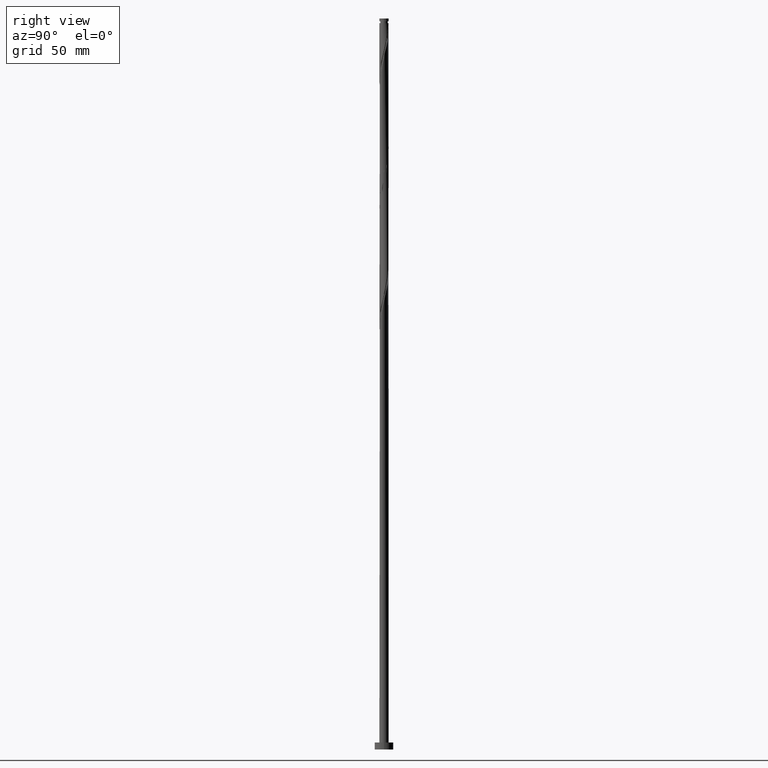
[diagram: clean part render]
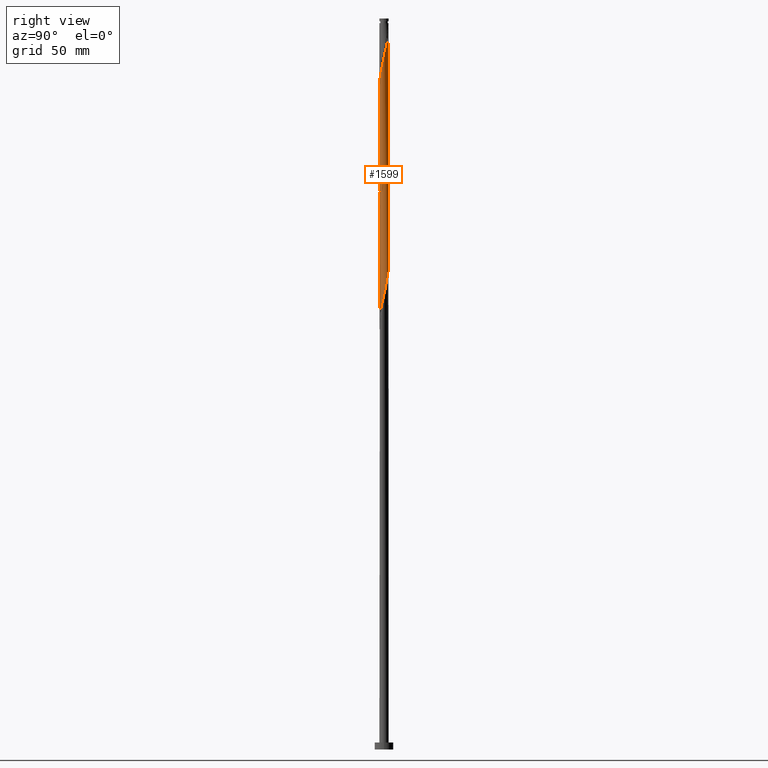
[diagram: same view with one face highlighted and labeled with its STEP entity id]
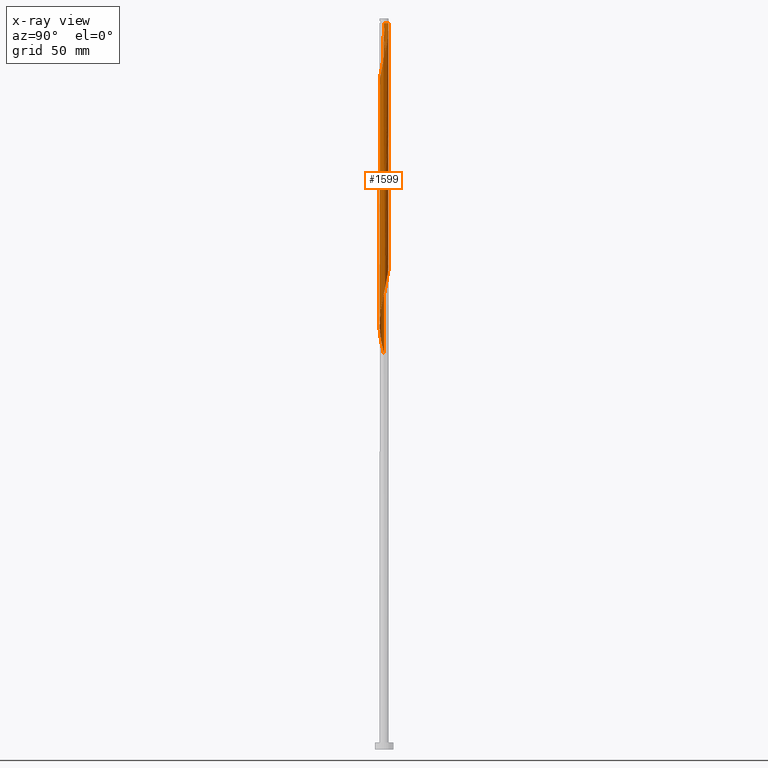
[diagram: x-ray of the same camera — body ghosted, the highlighted face saturated]
A machine part, right view. The second image highlights one B-rep face of the part: STEP entity #1599.
The next image is the same camera in x-ray: the body ghosted, the highlighted face saturated — about 0% of this face is hidden behind the body in this view.
In plain terms, the highlighted cylindrical surface (bore or boss wall) has radius 2 mm, axis along (-0, -0, -1).
Its self-contained STEP definition (entity closure, byte-faithful):
#18 = CARTESIAN_POINT ( 'NONE',  ( -1.999999999999999556, 2.089608293013599291E-15, 170.3156479799729652 ) ) ;
#20 = CARTESIAN_POINT ( 'NONE',  ( -0.9108750104470638709, -1.780535513642755863, 281.1411309020668341 ) ) ;
#34 = CARTESIAN_POINT ( 'NONE',  ( 0.6188339370468680656, -1.915156736119010494, 287.7036309020668909 ) ) ;
#39 = CARTESIAN_POINT ( 'NONE',  ( 1.822296494364466612, -0.8241574404365787920, 193.0161309020669478 ) ) ;
#43 = CARTESIAN_POINT ( 'NONE',  ( 1.284243897631924813, 1.533205012839174319, 305.5161309020669478 ) ) ;
#49 = CARTESIAN_POINT ( 'NONE',  ( 1.533205012839172765, 1.284243897631921705, 254.8911309020669478 ) ) ;
#53 = CARTESIAN_POINT ( 'NONE',  ( 0.8241574404365790141, -1.822296494364470387, 288.6411309020669478 ) ) ;
#54 = CARTESIAN_POINT ( 'NONE',  ( 1.677904548334138379, 1.111493181365744709, 201.4536309020669194 ) ) ;
#57 = CARTESIAN_POINT ( 'NONE',  ( 1.999420921388279426, 0.04812462067217344180, 249.2661309020669478 ) ) ;
#68 = CARTESIAN_POINT ( 'NONE',  ( -1.456994613898098923, 1.388505477344206263, 268.9536309020668909 ) ) ;
#75 = CARTESIAN_POINT ( 'NONE',  ( -0.2734052539827800943, 1.993998578895568086, 210.8286309020669478 ) ) ;
#78 = CARTESIAN_POINT ( 'NONE',  ( 1.780535513642753198, 0.9108750104470616504, 253.0161309020669194 ) ) ;
#95 = ORIENTED_EDGE ( 'NONE', *, *, #1073, .F. ) ;
#131 = CARTESIAN_POINT ( 'NONE',  ( -1.915156736119010494, -0.6188339370468681766, 274.5786309020668909 ) ) ;
#152 = CARTESIAN_POINT ( 'NONE',  ( 0.2734052539827798167, -1.993998578895568086, 184.5786309020669478 ) ) ;
#156 = CARTESIAN_POINT ( 'NONE',  ( -0.4918310467555808141, -1.938582528923471049, 283.0161309020668909 ) ) ;
#161 = CARTESIAN_POINT ( 'NONE',  ( -0.04812462067217446876, -1.999420921388282979, 284.8911309020668909 ) ) ;
#171 = CARTESIAN_POINT ( 'NONE',  ( 0.8241574404365787920, 1.822296494364466390, 206.1411309020669194 ) ) ;
#176 = FACE_OUTER_BOUND ( 'NONE', #953, .T. ) ;
#180 = CARTESIAN_POINT ( 'NONE',  ( -1.677904548334138157, -1.111493181365745153, 227.7036309020668625 ) ) ;
#184 = CARTESIAN_POINT ( 'NONE',  ( -0.7102568395283782587, 1.883166478951367573, 265.2036309020668909 ) ) ;
#188 = CARTESIAN_POINT ( 'NONE',  ( 1.822296494364466612, -0.8241574404365787920, 245.5161309020669478 ) ) ;
#192 = CARTESIAN_POINT ( 'NONE',  ( -0.9108750104470619835, 1.780535513642753198, 266.1411309020669478 ) ) ;
#195 = CARTESIAN_POINT ( 'NONE',  ( 1.456994613898102253, 1.388505477344208483, 304.5786309020669478 ) ) ;
#198 = CARTESIAN_POINT ( 'NONE',  ( 1.999999999999999112, -2.317226339216866477E-15, 249.0656479799729652 ) ) ;
#206 = CARTESIAN_POINT ( 'NONE',  ( 1.780535513642755863, -0.9108750104470642039, 294.2661309020669478 ) ) ;
#207 = CARTESIAN_POINT ( 'NONE',  ( -0.4918310467555793153, 1.938582528923467940, 211.7661309020669478 ) ) ;
#214 = DIRECTION ( 'NONE',  ( -0.000000000000000000, -0.000000000000000000, -1.000000000000000000 ) ) ;
#270 = EDGE_CURVE ( 'NONE', #1166, #359, #813, .T. ) ;
#275 = CARTESIAN_POINT ( 'NONE',  ( -1.593215433254016045, -1.208993210585249445, 277.3911309020669478 ) ) ;
#287 = CARTESIAN_POINT ( 'NONE',  ( -1.677904548334138157, -1.111493181365745153, 175.2036309020669194 ) ) ;
#296 = CARTESIAN_POINT ( 'NONE',  ( -1.029480943826289074, -1.729436252609926283, 178.9536309020668625 ) ) ;
#303 = CARTESIAN_POINT ( 'NONE',  ( 0.1771560126384324751, 2.004843263880990989, 208.9536309020668625 ) ) ;
#307 = CARTESIAN_POINT ( 'NONE',  ( -1.388505477344206707, -1.456994613898098923, 177.0786309020669194 ) ) ;
#311 = CARTESIAN_POINT ( 'NONE',  ( 0.9108750104470642039, 1.780535513642755863, 307.3911309020668909 ) ) ;
#312 = CARTESIAN_POINT ( 'NONE',  ( 1.883166478951367573, 0.7102568395283779257, 199.5786309020668909 ) ) ;
#315 = CARTESIAN_POINT ( 'NONE',  ( -1.593215433254013380, 1.208993210585247891, 269.8911309020670046 ) ) ;
#321 = CARTESIAN_POINT ( 'NONE',  ( -1.456994613898098923, 1.388505477344206263, 216.4536309020668909 ) ) ;
#328 = CARTESIAN_POINT ( 'NONE',  ( -0.3979949748426959144, 1.960000000000543974, 313.0161309020667204 ) ) ;
#329 = CARTESIAN_POINT ( 'NONE',  ( 0.9108750104470616504, -1.780535513642753198, 239.8911309020669478 ) ) ;
#332 = CARTESIAN_POINT ( 'NONE',  ( -0.2734052539827800943, 1.993998578895568086, 263.3286309020668909 ) ) ;
#337 = CARTESIAN_POINT ( 'NONE',  ( -0.1771560126384291445, 2.004843263880994098, 312.0786309020668909 ) ) ;
#338 = CARTESIAN_POINT ( 'NONE',  ( 1.959999999999998632, -0.3979949748426503953, 247.3911309020669194 ) ) ;
#341 = CARTESIAN_POINT ( 'NONE',  ( 2.000000000000000000, 2.449293598294706414E-16, 315.0000000000000000 ) ) ;
#359 = VERTEX_POINT ( 'NONE', #463 ) ;
#424 = EDGE_CURVE ( 'NONE', #1124, #1774, #1176, .T. ) ;
#427 = CARTESIAN_POINT ( 'NONE',  ( -1.999999999999999556, -1.003758269322604037E-15, 275.3156479799729937 ) ) ;
#433 = VECTOR ( 'NONE', #627, 1000.000000000000000 ) ;
#443 = CYLINDRICAL_SURFACE ( 'NONE', #1382, 2.000000000000000000 ) ;
#446 = CARTESIAN_POINT ( 'NONE',  ( 0.4918310467555809251, 1.938582528923471493, 309.2661309020669478 ) ) ;
#448 = CARTESIAN_POINT ( 'NONE',  ( -0.9108750104470619835, 1.780535513642753198, 213.6411309020669762 ) ) ;
#451 = CARTESIAN_POINT ( 'NONE',  ( 0.8241574404365787920, 1.822296494364466390, 258.6411309020668909 ) ) ;
#454 = CARTESIAN_POINT ( 'NONE',  ( 1.533205012839174319, -1.284243897631924813, 292.3911309020668341 ) ) ;
#456 = CARTESIAN_POINT ( 'NONE',  ( 1.938582528923467940, 0.4918310467555788712, 198.6411309020669478 ) ) ;
#459 = CARTESIAN_POINT ( 'NONE',  ( 1.388505477344206929, 1.456994613898098923, 255.8286309020668625 ) ) ;
#463 = CARTESIAN_POINT ( 'NONE',  ( -0.3979949748426959144, 1.960000000000544196, 313.0161309020667773 ) ) ;
#469 = CARTESIAN_POINT ( 'NONE',  ( -1.729436252609926283, 1.029480943826289074, 218.3286309020669194 ) ) ;
#475 = CARTESIAN_POINT ( 'NONE',  ( -2.000000000000000000, 0.000000000000000000, 315.0000000000000000 ) ) ;
#476 = CARTESIAN_POINT ( 'NONE',  ( 0.7102568395283807012, 1.883166478951371126, 308.3286309020668341 ) ) ;
#477 = VERTEX_POINT ( 'NONE', #1748 ) ;
#478 = CARTESIAN_POINT ( 'NONE',  ( 1.999999999999998224, -0.2010075630518474987, 248.2273769010093645 ) ) ;
#481 = CARTESIAN_POINT ( 'NONE',  ( -1.729436252609926283, 1.029480943826289074, 270.8286309020669478 ) ) ;
#490 = LINE ( 'NONE', #341, #1364 ) ;
#500 = ORIENTED_EDGE ( 'NONE', *, *, #1587, .F. ) ;
#557 = CARTESIAN_POINT ( 'NONE',  ( 2.000000000000000000, 2.449293598294706414E-16, 313.0161309020669478 ) ) ;
#560 = CARTESIAN_POINT ( 'NONE',  ( -1.960000000000002629, -0.3979949748426502842, 273.6411309020668909 ) ) ;
#562 =( BOUNDED_CURVE ( )  B_SPLINE_CURVE ( 2, ( #623, #1047, #1030, #1584, #1606, #481, #315, #68, #1337, #1182, #192, #184, #1575, #332, #1306, #870, #746, #896, #451, #1744, #1329, #459, #49, #1458, #78, #765, #887, #1203, #57, #1190, #638 ),
 .UNSPECIFIED., .F., .T. ) 
 B_SPLINE_CURVE_WITH_KNOTS ( ( 3, 2, 2, 2, 2, 2, 2, 2, 2, 2, 2, 2, 2, 2, 2, 3 ),
 ( 0.4295303401299219725, 0.4375000000000000000, 0.4464285714285714524, 0.4553571428571428492, 0.4642857142857143016, 0.4732142857142856984, 0.4821428571428571508, 0.4910714285714285476, 0.5000000000000000000, 0.5089285714285713969, 0.5178571428571429047, 0.5267857142857143016, 0.5357142857142856984, 0.5446428571428570953, 0.5535714285714286031, 0.5545303401299221946 ),
 .UNSPECIFIED. ) 
 CURVE ( )  GEOMETRIC_REPRESENTATION_ITEM ( )  RATIONAL_B_SPLINE_CURVE ( ( 0.9079949616362307241, 0.9039886423360936618, 0.9090909090909605750, 0.9033747362666354475, 0.9090909090909605750, 0.9033747362666354475, 0.9090909090909605750, 0.9033747362666354475, 0.9090909090909605750, 0.9033747362666354475, 0.9090909090909605750, 0.9033747362666354475, 0.9090909090909605750, 0.9033747362666354475, 0.9090909090909605750, 0.9033747362666354475, 0.9090909090909605750, 0.9033747362666354475, 0.9090909090909605750, 0.9033747362666354475, 0.9090909090909605750, 0.9033747362666354475, 0.9090909090909605750, 0.9033747362666354475, 0.9090909090909605750, 0.9033747362666354475, 0.9090909090909605750, 0.9033747362666354475, 0.9090909090909605750, 0.9084770030215022496, 0.9079949616362305020 ) ) 
 REPRESENTATION_ITEM ( '' )  );
#570 = CARTESIAN_POINT ( 'NONE',  ( 0.1771560126384322253, -2.004843263880994542, 285.8286309020669478 ) ) ;
#579 =( BOUNDED_CURVE ( )  B_SPLINE_CURVE ( 2, ( #1801, #1525, #560, #131, #1657, #975, #275, #957, #829, #1267, #20, #1533, #156, #707, #161, #570, #1280, #34, #53, #628, #749, #599, #454, #1590, #206, #1439, #730, #1429, #740, #1014, #619, #1285, #1177, #1294, #1301, #195, #43, #1579, #311, #476, #446, #1738, #1035, #337, #328 ),
 .UNSPECIFIED., .F., .T. ) 
 B_SPLINE_CURVE_WITH_KNOTS ( ( 3, 2, 2, 2, 2, 2, 2, 2, 2, 2, 2, 2, 2, 2, 2, 2, 2, 2, 2, 2, 2, 2, 3 ),
 ( 0.5545303401299218615, 0.5625000000000000000, 0.5714285714285713969, 0.5803571428571427937, 0.5892857142857143016, 0.5982142857142856984, 0.6071428571428572063, 0.6160714285714286031, 0.6250000000000000000, 0.6339285714285713969, 0.6428571428571427937, 0.6517857142857141906, 0.6607142857142855874, 0.6696428571428570953, 0.6785714285714284921, 0.6874999999999998890, 0.6964285714285712858, 0.7053571428571426827, 0.7142857142857141906, 0.7232142857142855874, 0.7321428571428570953, 0.7410714285714284921, 0.7499999999999998890 ),
 .UNSPECIFIED. ) 
 CURVE ( )  GEOMETRIC_REPRESENTATION_ITEM ( )  RATIONAL_B_SPLINE_CURVE ( ( 0.9079949616362383846, 0.9039886423361009893, 0.9090909090909681245, 0.9033747362666427749, 0.9090909090909681245, 0.9033747362666427749, 0.9090909090909681245, 0.9033747362666427749, 0.9090909090909681245, 0.9033747362666427749, 0.9090909090909681245, 0.9033747362666427749, 0.9090909090909681245, 0.9033747362666427749, 0.9090909090909681245, 0.9033747362666427749, 0.9090909090909681245, 0.9033747362666427749, 0.9090909090909681245, 0.9033747362666427749, 0.9090909090909681245, 0.9033747362666427749, 0.9090909090909681245, 0.9033747362666427749, 0.9090909090909681245, 0.9033747362666427749, 0.9090909090909681245, 0.9033747362666427749, 0.9090909090909681245, 0.9033747362666427749, 0.9090909090909681245, 0.9033747362666427749, 0.9090909090909681245, 0.9033747362666427749, 0.9090909090909681245, 0.9033747362666427749, 0.9090909090909681245, 0.9033747362666427749, 0.9090909090909681245, 0.9033747362666427749, 0.9090909090909681245, 0.9033747362666427749, 0.9090909090909681245, 0.9033747362666428860, 0.9090909090909680135 ) ) 
 REPRESENTATION_ITEM ( '' )  );
#581 = CARTESIAN_POINT ( 'NONE',  ( -2.000000000000000000, 0.000000000000000000, 315.0000000000000000 ) ) ;
#585 = CARTESIAN_POINT ( 'NONE',  ( 1.593215433254013158, -1.208993210585247891, 191.1411309020669194 ) ) ;
#592 = CARTESIAN_POINT ( 'NONE',  ( -1.593215433254013380, 1.208993210585247891, 217.3911309020669478 ) ) ;
#595 = CARTESIAN_POINT ( 'NONE',  ( 0.04812462067217355283, -1.999420921388279426, 183.6411309020669194 ) ) ;
#598 = DIRECTION ( 'NONE',  ( -1.000000000000000000, 0.000000000000000000, 0.000000000000000000 ) ) ;
#599 = CARTESIAN_POINT ( 'NONE',  ( 1.388505477344208705, -1.456994613898102253, 291.4536309020670615 ) ) ;
#601 = CARTESIAN_POINT ( 'NONE',  ( -1.993998578895568086, -0.2734052539827799833, 223.9536309020669194 ) ) ;
#604 = CARTESIAN_POINT ( 'NONE',  ( -1.999999999999999556, 2.089608293013599291E-15, 170.3156479799729652 ) ) ;
#610 = EDGE_CURVE ( 'NONE', #1166, #761, #1692, .T. ) ;
#611 = CARTESIAN_POINT ( 'NONE',  ( -0.04812462067217377487, 1.999420921388279426, 209.8911309020669194 ) ) ;
#619 = CARTESIAN_POINT ( 'NONE',  ( 1.960000000000002629, 0.3979949748426499512, 299.8911309020668909 ) ) ;
#620 = CARTESIAN_POINT ( 'NONE',  ( -1.284243897631922149, 1.533205012839172543, 215.5161309020669194 ) ) ;
#623 = CARTESIAN_POINT ( 'NONE',  ( -1.999999999999999556, -1.003758269322604037E-15, 275.3156479799729937 ) ) ;
#627 = DIRECTION ( 'NONE',  ( -0.000000000000000000, -0.000000000000000000, -1.000000000000000000 ) ) ;
#628 = CARTESIAN_POINT ( 'NONE',  ( 1.029480943826289741, -1.729436252609930280, 289.5786309020669478 ) ) ;
#629 = CARTESIAN_POINT ( 'NONE',  ( 1.284243897631921705, -1.533205012839172765, 241.7661309020669762 ) ) ;
#638 = CARTESIAN_POINT ( 'NONE',  ( 1.999999999999999112, -2.317226339216866477E-15, 249.0656479799729652 ) ) ;
#704 = DIRECTION ( 'NONE',  ( -1.000000000000000000, 0.000000000000000000, 0.000000000000000000 ) ) ;
#707 = CARTESIAN_POINT ( 'NONE',  ( -0.2734052539827812045, -1.993998578895571860, 283.9536309020668909 ) ) ;
#712 = CARTESIAN_POINT ( 'NONE',  ( 1.915156736119006498, -0.6188339370468676215, 193.9536309020669478 ) ) ;
#719 = CARTESIAN_POINT ( 'NONE',  ( 0.4918310467555790932, -1.938582528923467940, 185.5161309020669478 ) ) ;
#722 = CARTESIAN_POINT ( 'NONE',  ( 0.04812462067217355283, -1.999420921388279426, 236.1411309020669478 ) ) ;
#727 = CARTESIAN_POINT ( 'NONE',  ( -1.999999999999999556, -0.02406579433277882679, 170.4160106681980835 ) ) ;
#730 = CARTESIAN_POINT ( 'NONE',  ( 1.938582528923471493, -0.4918310467555809251, 296.1411309020670046 ) ) ;
#732 = CARTESIAN_POINT ( 'NONE',  ( 0.2734052539827798167, -1.993998578895568086, 237.0786309020669194 ) ) ;
#740 = CARTESIAN_POINT ( 'NONE',  ( 1.999420921388282979, -0.04812462067217463529, 298.0161309020668909 ) ) ;
#743 = CARTESIAN_POINT ( 'NONE',  ( 1.111493181365744709, -1.677904548334138379, 240.8286309020668625 ) ) ;
#746 = CARTESIAN_POINT ( 'NONE',  ( 0.3979949748426505063, 1.959999999999998632, 260.5161309020669478 ) ) ;
#749 = CARTESIAN_POINT ( 'NONE',  ( 1.208993210585249445, -1.593215433254016045, 290.5161309020668909 ) ) ;
#752 = CARTESIAN_POINT ( 'NONE',  ( -0.8241574404365786810, -1.822296494364466835, 232.3911309020669194 ) ) ;
#761 = VERTEX_POINT ( 'NONE', #427 ) ;
#762 = CARTESIAN_POINT ( 'NONE',  ( -1.388505477344206707, -1.456994613898098923, 229.5786309020669194 ) ) ;
#765 = CARTESIAN_POINT ( 'NONE',  ( 1.883166478951367573, 0.7102568395283779257, 252.0786309020668909 ) ) ;
#813 = CIRCLE ( 'NONE', #1432, 1.999999999999974021 ) ;
#829 = CARTESIAN_POINT ( 'NONE',  ( -1.284243897631924813, -1.533205012839174763, 279.2661309020668341 ) ) ;
#834 = CARTESIAN_POINT ( 'NONE',  ( -0.8241574404365786810, -1.822296494364466835, 179.8911309020669194 ) ) ;
#842 = DIRECTION ( 'NONE',  ( -0.000000000000000000, -0.000000000000000000, -1.000000000000000000 ) ) ;
#843 = CARTESIAN_POINT ( 'NONE',  ( 0.000000000000000000, 0.000000000000000000, 313.0161309020669478 ) ) ;
#852 = CARTESIAN_POINT ( 'NONE',  ( -0.1771560126384326417, -2.004843263880990989, 182.7036309020669194 ) ) ;
#855 = CARTESIAN_POINT ( 'NONE',  ( 0.3979949748426505063, 1.959999999999998632, 208.0161309020669194 ) ) ;
#860 = CARTESIAN_POINT ( 'NONE',  ( -1.780535513642753198, -0.9108750104470618725, 174.2661309020669762 ) ) ;
#865 = CARTESIAN_POINT ( 'NONE',  ( 0.7102568395283780367, -1.883166478951367573, 238.9536309020669194 ) ) ;
#870 = CARTESIAN_POINT ( 'NONE',  ( 0.1771560126384324751, 2.004843263880990989, 261.4536309020668341 ) ) ;
#875 = CARTESIAN_POINT ( 'NONE',  ( -2.000000000000002665, -1.194061881722046849E-15, 271.9666138241607882 ) ) ;
#877 = CARTESIAN_POINT ( 'NONE',  ( 1.999420921388279426, 0.04812462067217344180, 196.7661309020669478 ) ) ;
#880 = DIRECTION ( 'NONE',  ( -0.000000000000000000, -0.000000000000000000, -1.000000000000000000 ) ) ;
#884 = CARTESIAN_POINT ( 'NONE',  ( -0.3979949748426502287, -1.959999999999998632, 234.2661309020669762 ) ) ;
#887 = CARTESIAN_POINT ( 'NONE',  ( 1.938582528923467940, 0.4918310467555788712, 251.1411309020668909 ) ) ;
#890 = DIRECTION ( 'NONE',  ( -0.000000000000000000, -0.000000000000000000, -1.000000000000000000 ) ) ;
#893 = CARTESIAN_POINT ( 'NONE',  ( -1.959999999999998632, 0.3979949748426501732, 221.1411309020669478 ) ) ;
#896 = CARTESIAN_POINT ( 'NONE',  ( 0.6188339370468678435, 1.915156736119006498, 259.5786309020668341 ) ) ;
#953 = EDGE_LOOP ( 'NONE', ( #1134, #1719, #95, #1277, #500, #1346, #991, #980 ) ) ;
#957 = CARTESIAN_POINT ( 'NONE',  ( -1.456994613898102253, -1.388505477344208705, 278.3286309020668341 ) ) ;
#975 = CARTESIAN_POINT ( 'NONE',  ( -1.729436252609930280, -1.029480943826289741, 276.4536309020669478 ) ) ;
#980 = ORIENTED_EDGE ( 'NONE', *, *, #1797, .F. ) ;
#991 = ORIENTED_EDGE ( 'NONE', *, *, #1767, .T. ) ;
#998 = CARTESIAN_POINT ( 'NONE',  ( 1.915156736119006498, -0.6188339370468676215, 246.4536309020668909 ) ) ;
#1006 = CARTESIAN_POINT ( 'NONE',  ( 1.533205012839172765, 1.284243897631921705, 202.3911309020669478 ) ) ;
#1014 = CARTESIAN_POINT ( 'NONE',  ( 2.004843263880994542, 0.1771560126384321421, 298.9536309020668909 ) ) ;
#1016 = CARTESIAN_POINT ( 'NONE',  ( 1.993998578895568086, 0.2734052539827797057, 197.7036309020669194 ) ) ;
#1027 = CARTESIAN_POINT ( 'NONE',  ( 1.456994613898098923, -1.388505477344206707, 242.7036309020668909 ) ) ;
#1030 = CARTESIAN_POINT ( 'NONE',  ( -1.959999999999998632, 0.3979949748426501732, 273.6411309020668909 ) ) ;
#1035 = CARTESIAN_POINT ( 'NONE',  ( 0.04812462067217478795, 1.999420921388282979, 311.1411309020668909 ) ) ;
#1036 = CARTESIAN_POINT ( 'NONE',  ( -0.6188339370468675105, -1.915156736119006498, 233.3286309020669194 ) ) ;
#1047 = CARTESIAN_POINT ( 'NONE',  ( -1.999999999999999556, 0.2010075630518430023, 274.4773769010094497 ) ) ;
#1073 = EDGE_CURVE ( 'NONE', #1124, #359, #579, .T. ) ;
#1117 = CARTESIAN_POINT ( 'NONE',  ( -1.938582528923467940, -0.4918310467555792043, 172.3911309020669194 ) ) ;
#1124 = VERTEX_POINT ( 'NONE', #875 ) ;
#1134 = ORIENTED_EDGE ( 'NONE', *, *, #610, .F. ) ;
#1138 = CARTESIAN_POINT ( 'NONE',  ( -1.208993210585247891, -1.593215433254013158, 178.0161309020669194 ) ) ;
#1145 = CARTESIAN_POINT ( 'NONE',  ( -1.883166478951367573, -0.7102568395283780367, 173.3286309020668909 ) ) ;
#1149 = CARTESIAN_POINT ( 'NONE',  ( 1.029480943826289296, 1.729436252609926061, 205.2036309020669194 ) ) ;
#1152 = CARTESIAN_POINT ( 'NONE',  ( -0.3979949748426502287, -1.959999999999998632, 181.7661309020669762 ) ) ;
#1157 = CARTESIAN_POINT ( 'NONE',  ( -2.004843263880990989, 0.1771560126384325584, 222.0786309020668625 ) ) ;
#1166 = VERTEX_POINT ( 'NONE', #1709 ) ;
#1168 = CARTESIAN_POINT ( 'NONE',  ( 2.004843263880990989, -0.1771560126384327805, 195.8286309020668625 ) ) ;
#1176 = LINE ( 'NONE', #475, #433 ) ;
#1177 = CARTESIAN_POINT ( 'NONE',  ( 1.822296494364470387, 0.8241574404365790141, 301.7661309020670046 ) ) ;
#1179 = CARTESIAN_POINT ( 'NONE',  ( -1.111493181365745375, 1.677904548334138157, 214.5786309020668909 ) ) ;
#1182 = CARTESIAN_POINT ( 'NONE',  ( -1.111493181365745375, 1.677904548334138157, 267.0786309020668341 ) ) ;
#1187 = CARTESIAN_POINT ( 'NONE',  ( -1.029480943826289074, -1.729436252609926283, 231.4536309020669478 ) ) ;
#1190 = CARTESIAN_POINT ( 'NONE',  ( 1.999999999999999556, 0.02406579433277581878, 249.1660106681981119 ) ) ;
#1203 = CARTESIAN_POINT ( 'NONE',  ( 1.993998578895568086, 0.2734052539827797057, 250.2036309020669194 ) ) ;
#1264 = CARTESIAN_POINT ( 'NONE',  ( 1.729436252609926283, -1.029480943826289296, 192.0786309020669762 ) ) ;
#1267 = CARTESIAN_POINT ( 'NONE',  ( -1.111493181365747374, -1.677904548334140822, 280.2036309020668341 ) ) ;
#1273 = CARTESIAN_POINT ( 'NONE',  ( -0.6188339370468675105, -1.915156736119006498, 180.8286309020669194 ) ) ;
#1277 = ORIENTED_EDGE ( 'NONE', *, *, #424, .T. ) ;
#1280 = CARTESIAN_POINT ( 'NONE',  ( 0.3979949748426501177, -1.960000000000002629, 286.7661309020670046 ) ) ;
#1285 = CARTESIAN_POINT ( 'NONE',  ( 1.915156736119010494, 0.6188339370468680656, 300.8286309020668909 ) ) ;
#1288 = VECTOR ( 'NONE', #890, 1000.000000000000000 ) ;
#1291 = CARTESIAN_POINT ( 'NONE',  ( -1.999420921388279426, -0.04812462067217365691, 170.5161309020669478 ) ) ;
#1294 = CARTESIAN_POINT ( 'NONE',  ( 1.729436252609930280, 1.029480943826289741, 302.7036309020668909 ) ) ;
#1295 = CARTESIAN_POINT ( 'NONE',  ( -1.938582528923467940, -0.4918310467555792043, 224.8911309020669762 ) ) ;
#1301 = CARTESIAN_POINT ( 'NONE',  ( 1.593215433254016267, 1.208993210585249445, 303.6411309020668909 ) ) ;
#1303 = CARTESIAN_POINT ( 'NONE',  ( -1.780535513642753198, -0.9108750104470618725, 226.7661309020669478 ) ) ;
#1306 = CARTESIAN_POINT ( 'NONE',  ( -0.04812462067217377487, 1.999420921388279426, 262.3911309020670046 ) ) ;
#1314 = CARTESIAN_POINT ( 'NONE',  ( 1.729436252609926283, -1.029480943826289296, 244.5786309020668625 ) ) ;
#1325 = CARTESIAN_POINT ( 'NONE',  ( -1.822296494364466835, 0.8241574404365784590, 219.2661309020669478 ) ) ;
#1329 = CARTESIAN_POINT ( 'NONE',  ( 1.208993210585248113, 1.593215433254013158, 256.7661309020668909 ) ) ;
#1337 = CARTESIAN_POINT ( 'NONE',  ( -1.284243897631922149, 1.533205012839172543, 268.0161309020668909 ) ) ;
#1346 = ORIENTED_EDGE ( 'NONE', *, *, #1767, .F. ) ;
#1364 = VECTOR ( 'NONE', #880, 1000.000000000000000 ) ;
#1382 = AXIS2_PLACEMENT_3D ( 'NONE', #1705, #842, #704 ) ;
#1395 = CARTESIAN_POINT ( 'NONE',  ( 1.284243897631921705, -1.533205012839172765, 189.2661309020668625 ) ) ;
#1403 = CARTESIAN_POINT ( 'NONE',  ( 0.9108750104470616504, -1.780535513642753198, 187.3911309020669762 ) ) ;
#1423 = CARTESIAN_POINT ( 'NONE',  ( 0.6188339370468678435, 1.915156736119006498, 207.0786309020669194 ) ) ;
#1427 = CARTESIAN_POINT ( 'NONE',  ( -1.993998578895568086, -0.2734052539827799833, 171.4536309020668909 ) ) ;
#1429 = CARTESIAN_POINT ( 'NONE',  ( 1.993998578895571638, -0.2734052539827813155, 297.0786309020670046 ) ) ;
#1430 = CARTESIAN_POINT ( 'NONE',  ( 0.4918310467555790932, -1.938582528923467940, 238.0161309020669194 ) ) ;
#1432 = AXIS2_PLACEMENT_3D ( 'NONE', #843, #214, #598 ) ;
#1439 = CARTESIAN_POINT ( 'NONE',  ( 1.883166478951371348, -0.7102568395283802571, 295.2036309020670046 ) ) ;
#1440 = CARTESIAN_POINT ( 'NONE',  ( 1.388505477344206929, 1.456994613898098923, 203.3286309020668909 ) ) ;
#1448 = CARTESIAN_POINT ( 'NONE',  ( -1.999420921388279426, -0.04812462067217365691, 223.0161309020669194 ) ) ;
#1454 = CARTESIAN_POINT ( 'NONE',  ( -1.915156736119006498, 0.6188339370468675105, 220.2036309020669194 ) ) ;
#1458 = CARTESIAN_POINT ( 'NONE',  ( 1.677904548334138379, 1.111493181365744709, 253.9536309020668625 ) ) ;
#1525 = CARTESIAN_POINT ( 'NONE',  ( -2.000000000000003997, -0.2010075630518388667, 272.8048849031245027 ) ) ;
#1533 = CARTESIAN_POINT ( 'NONE',  ( -0.7102568395283802571, -1.883166478951371348, 282.0786309020668341 ) ) ;
#1539 = CARTESIAN_POINT ( 'NONE',  ( -1.533205012839172543, -1.284243897631921705, 176.1411309020669762 ) ) ;
#1554 = CARTESIAN_POINT ( 'NONE',  ( -1.883166478951367573, -0.7102568395283780367, 225.8286309020668625 ) ) ;
#1557 = CARTESIAN_POINT ( 'NONE',  ( 1.456994613898098923, -1.388505477344206707, 190.2036309020668909 ) ) ;
#1562 = CARTESIAN_POINT ( 'NONE',  ( 1.780535513642753198, 0.9108750104470616504, 200.5161309020669478 ) ) ;
#1564 =( BOUNDED_CURVE ( )  B_SPLINE_CURVE ( 2, ( #198, #478, #338, #998, #188, #1314, #1581, #1027, #629, #743, #329, #865, #1430, #732, #722, #1731, #884, #1036, #752, #1187, #1592, #762, #1740, #180, #1303, #1554, #1295, #601, #1448, #1157, #893, #1454, #1325, #469, #592, #321, #620, #1179, #448, #1711, #207, #75, #611, #303, #855, #1423, #171, #1149, #1702, #1440, #1006, #54, #1562, #312, #456, #1016, #877, #1168, #1720, #712, #39, #1264, #585, #1557, #1395, #1689, #1403, #1671, #719, #152, #595, #852, #1152, #1273, #834, #296, #1138, #307, #1539, #287, #860, #1145, #1117, #1427, #1291, #727, #18 ),
 .UNSPECIFIED., .F., .T. ) 
 B_SPLINE_CURVE_WITH_KNOTS ( ( 3, 2, 2, 2, 2, 2, 2, 2, 2, 2, 2, 2, 2, 2, 2, 2, 2, 2, 2, 2, 2, 2, 2, 2, 2, 2, 2, 2, 2, 2, 2, 2, 2, 2, 2, 2, 2, 2, 2, 2, 2, 2, 2, 3 ),
 ( 0.5545303401299221946, 0.5625000000000000000, 0.5714285714285713969, 0.5803571428571429047, 0.5892857142857143016, 0.5982142857142856984, 0.6071428571428570953, 0.6160714285714286031, 0.6250000000000000000, 0.6339285714285713969, 0.6428571428571429047, 0.6517857142857143016, 0.6607142857142856984, 0.6696428571428570953, 0.6785714285714286031, 0.6875000000000000000, 0.6964285714285713969, 0.7053571428571429047, 0.7142857142857143016, 0.7232142857142856984, 0.7321428571428570953, 0.7410714285714286031, 0.7500000000000000000, 0.7589285714285713969, 0.7678571428571429047, 0.7767857142857143016, 0.7857142857142856984, 0.7946428571428570953, 0.8035714285714286031, 0.8125000000000000000, 0.8214285714285713969, 0.8303571428571429047, 0.8392857142857143016, 0.8482142857142856984, 0.8571428571428570953, 0.8660714285714286031, 0.8750000000000000000, 0.8839285714285713969, 0.8928571428571429047, 0.9017857142857143016, 0.9107142857142856984, 0.9196428571428570953, 0.9285714285714286031, 0.9295303401299220836 ),
 .UNSPECIFIED. ) 
 CURVE ( )  GEOMETRIC_REPRESENTATION_ITEM ( )  RATIONAL_B_SPLINE_CURVE ( ( 0.9079949616362305020, 0.9039886423360937728, 0.9090909090909605750, 0.9033747362666354475, 0.9090909090909605750, 0.9033747362666354475, 0.9090909090909605750, 0.9033747362666354475, 0.9090909090909605750, 0.9033747362666354475, 0.9090909090909605750, 0.9033747362666354475, 0.9090909090909605750, 0.9033747362666354475, 0.9090909090909605750, 0.9033747362666354475, 0.9090909090909605750, 0.9033747362666354475, 0.9090909090909605750, 0.9033747362666354475, 0.9090909090909605750, 0.9033747362666354475, 0.9090909090909605750, 0.9033747362666354475, 0.9090909090909605750, 0.9033747362666354475, 0.9090909090909605750, 0.9033747362666354475, 0.9090909090909605750, 0.9033747362666354475, 0.9090909090909605750, 0.9033747362666354475, 0.9090909090909605750, 0.9033747362666354475, 0.9090909090909605750, 0.9033747362666354475, 0.9090909090909605750, 0.9033747362666354475, 0.9090909090909605750, 0.9033747362666354475, 0.9090909090909605750, 0.9033747362666354475, 0.9090909090909605750, 0.9033747362666354475, 0.9090909090909605750, 0.9033747362666354475, 0.9090909090909605750, 0.9033747362666354475, 0.9090909090909605750, 0.9033747362666354475, 0.9090909090909605750, 0.9033747362666354475, 0.9090909090909605750, 0.9033747362666354475, 0.9090909090909605750, 0.9033747362666354475, 0.9090909090909605750, 0.9033747362666354475, 0.9090909090909605750, 0.9033747362666354475, 0.9090909090909605750, 0.9033747362666354475, 0.9090909090909605750, 0.9033747362666354475, 0.9090909090909605750, 0.9033747362666354475, 0.9090909090909605750, 0.9033747362666354475, 0.9090909090909605750, 0.9033747362666354475, 0.9090909090909605750, 0.9033747362666354475, 0.9090909090909605750, 0.9033747362666354475, 0.9090909090909605750, 0.9033747362666354475, 0.9090909090909605750, 0.9033747362666354475, 0.9090909090909605750, 0.9033747362666354475, 0.9090909090909605750, 0.9033747362666354475, 0.9090909090909605750, 0.9033747362666354475, 0.9090909090909605750, 0.9084770030215023606, 0.9079949616362307241 ) ) 
 REPRESENTATION_ITEM ( '' )  );
#1575 = CARTESIAN_POINT ( 'NONE',  ( -0.4918310467555793153, 1.938582528923467940, 264.2661309020669478 ) ) ;
#1579 = CARTESIAN_POINT ( 'NONE',  ( 1.111493181365747818, 1.677904548334140600, 306.4536309020668909 ) ) ;
#1581 = CARTESIAN_POINT ( 'NONE',  ( 1.593215433254013158, -1.208993210585247891, 243.6411309020668909 ) ) ;
#1584 = CARTESIAN_POINT ( 'NONE',  ( -1.915156736119006498, 0.6188339370468675105, 272.7036309020669478 ) ) ;
#1587 = EDGE_CURVE ( 'NONE', #477, #1774, #1564, .T. ) ;
#1590 = CARTESIAN_POINT ( 'NONE',  ( 1.677904548334141044, -1.111493181365747818, 293.3286309020669478 ) ) ;
#1592 = CARTESIAN_POINT ( 'NONE',  ( -1.208993210585247891, -1.593215433254013158, 230.5161309020669478 ) ) ;
#1599 = ADVANCED_FACE ( 'NONE', ( #176 ), #443, .T. ) ;
#1606 = CARTESIAN_POINT ( 'NONE',  ( -1.822296494364466835, 0.8241574404365784590, 271.7661309020669478 ) ) ;
#1657 = CARTESIAN_POINT ( 'NONE',  ( -1.822296494364470387, -0.8241574404365790141, 275.5161309020669478 ) ) ;
#1671 = CARTESIAN_POINT ( 'NONE',  ( 0.7102568395283780367, -1.883166478951367573, 186.4536309020668625 ) ) ;
#1689 = CARTESIAN_POINT ( 'NONE',  ( 1.111493181365744709, -1.677904548334138379, 188.3286309020668625 ) ) ;
#1692 = LINE ( 'NONE', #581, #1288 ) ;
#1702 = CARTESIAN_POINT ( 'NONE',  ( 1.208993210585248113, 1.593215433254013158, 204.2661309020669194 ) ) ;
#1705 = CARTESIAN_POINT ( 'NONE',  ( 0.000000000000000000, 0.000000000000000000, 315.0000000000000000 ) ) ;
#1709 = CARTESIAN_POINT ( 'NONE',  ( -1.999999999999974021, 0.000000000000000000, 313.0161309020669478 ) ) ;
#1711 = CARTESIAN_POINT ( 'NONE',  ( -0.7102568395283782587, 1.883166478951367573, 212.7036309020668909 ) ) ;
#1719 = ORIENTED_EDGE ( 'NONE', *, *, #270, .T. ) ;
#1720 = CARTESIAN_POINT ( 'NONE',  ( 1.959999999999998632, -0.3979949748426503953, 194.8911309020669478 ) ) ;
#1730 = VERTEX_POINT ( 'NONE', #557 ) ;
#1731 = CARTESIAN_POINT ( 'NONE',  ( -0.1771560126384326417, -2.004843263880990989, 235.2036309020668909 ) ) ;
#1738 = CARTESIAN_POINT ( 'NONE',  ( 0.2734052539827813155, 1.993998578895571638, 310.2036309020669478 ) ) ;
#1740 = CARTESIAN_POINT ( 'NONE',  ( -1.533205012839172543, -1.284243897631921705, 228.6411309020669762 ) ) ;
#1744 = CARTESIAN_POINT ( 'NONE',  ( 1.029480943826289296, 1.729436252609926061, 257.7036309020668909 ) ) ;
#1748 = CARTESIAN_POINT ( 'NONE',  ( 1.999999999999999112, -2.317226339216866477E-15, 249.0656479799729652 ) ) ;
#1767 = EDGE_CURVE ( 'NONE', #1730, #477, #490, .T. ) ;
#1774 = VERTEX_POINT ( 'NONE', #604 ) ;
#1797 = EDGE_CURVE ( 'NONE', #761, #477, #562, .T. ) ;
#1801 = CARTESIAN_POINT ( 'NONE',  ( -2.000000000000002665, -1.194061881722046849E-15, 271.9666138241607882 ) ) ;